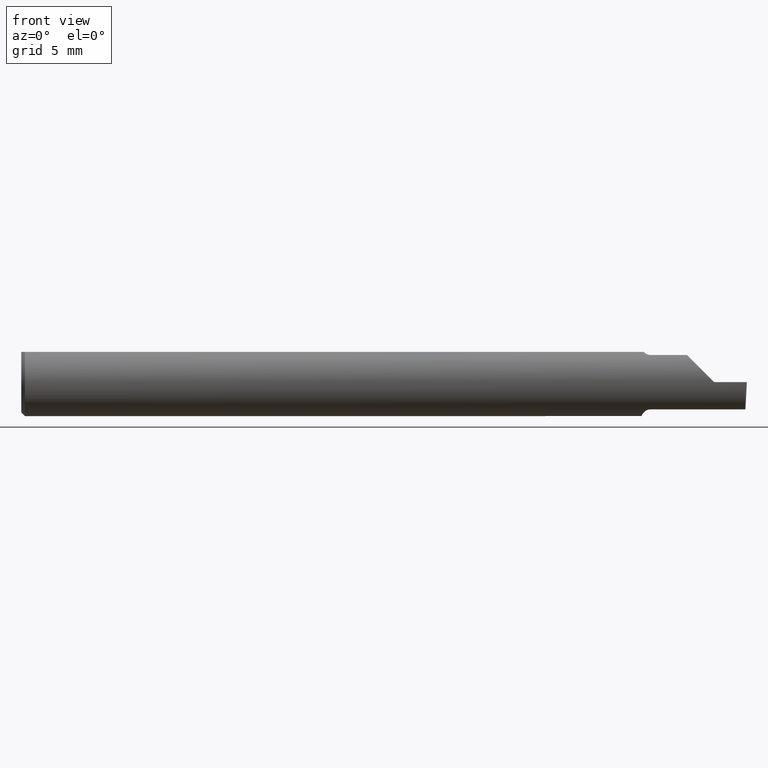
[diagram: clean part render]
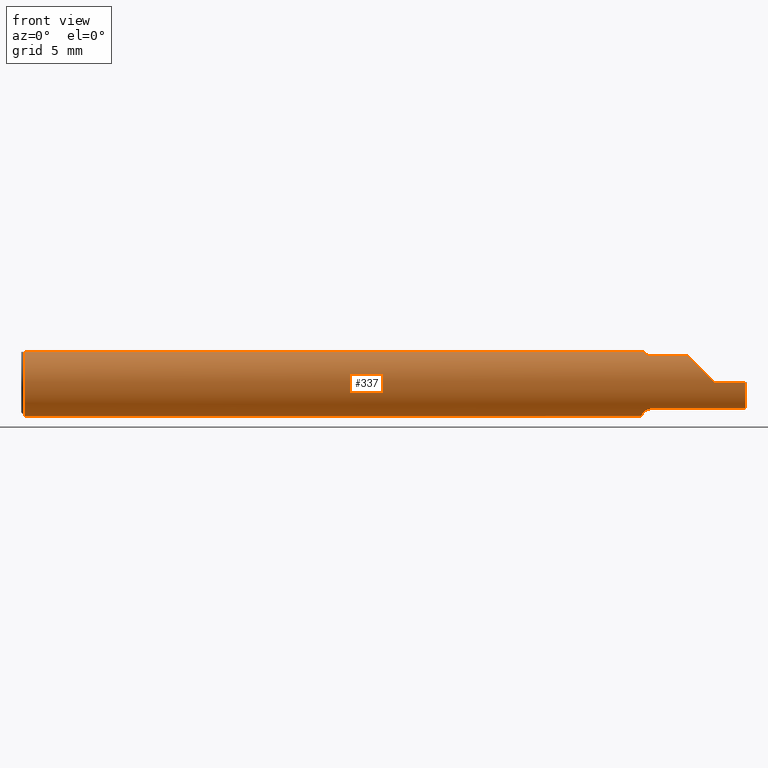
[diagram: same view with one face highlighted and labeled with its STEP entity id]
A machine part, front view. The second image highlights one B-rep face of the part: STEP entity #337.
In plain terms, the highlighted cylindrical surface (edge-blend (fillet) strip) has radius 2.3774 mm, axis along (-1, -0, -0).
Its self-contained STEP definition (entity closure, byte-faithful):
#3 = CARTESIAN_POINT ( 'NONE',  ( 1.709999999999999964, 0.04209513035969864037, 0.08359999999999988274 ) ) ;
#9 = AXIS2_PLACEMENT_3D ( 'NONE', #264, #501, #282 ) ;
#10 = CARTESIAN_POINT ( 'NONE',  ( 0.01000000000000016674, 0.04209513035969864037, 0.08359999999999988274 ) ) ;
#11 = DIRECTION ( 'NONE',  ( -1.000000000000000000, -0.000000000000000000, -0.000000000000000000 ) ) ;
#15 = CARTESIAN_POINT ( 'NONE',  ( 0.000000000000000000, -0.04209513035969864037, 0.08359999999999988274 ) ) ;
#16 = CARTESIAN_POINT ( 'NONE',  ( 0.01000000000000016674, -0.04209513035969864037, 0.08359999999999988274 ) ) ;
#19 = DIRECTION ( 'NONE',  ( 0.000000000000000000, 0.000000000000000000, 1.000000000000000000 ) ) ;
#26 = EDGE_CURVE ( 'NONE', #207, #250, #613, .T. ) ;
#31 = CARTESIAN_POINT ( 'NONE',  ( 1.716129652885479473, -0.04209513035970119388, 0.08359999999999991049 ) ) ;
#33 = VECTOR ( 'NONE', #679, 39.37007874015748143 ) ;
#34 = CARTESIAN_POINT ( 'NONE',  ( 0.01000000000000016674, 0.000000000000000000, -0.09360000000000001652 ) ) ;
#44 = AXIS2_PLACEMENT_3D ( 'NONE', #406, #628, #617 ) ;
#53 = CARTESIAN_POINT ( 'NONE',  ( 1.711762116932663558, -0.02818790137206256263, -0.08941930521177116065 ) ) ;
#57 = CARTESIAN_POINT ( 'NONE',  ( 1.854690286057537163, -0.08092595952420827965, 0.05530971394246238931 ) ) ;
#72 = ORIENTED_EDGE ( 'NONE', *, *, #690, .T. ) ;
#77 = VERTEX_POINT ( 'NONE', #564 ) ;
#88 = CARTESIAN_POINT ( 'NONE',  ( 1.726308147845286634, -0.05549979236676332722, 0.07538081185522389760 ) ) ;
#107 = CARTESIAN_POINT ( 'NONE',  ( 1.734999999999999876, -0.05810704225352095881, -0.07337936794867842838 ) ) ;
#109 = ORIENTED_EDGE ( 'NONE', *, *, #221, .F. ) ;
#116 = CIRCLE ( 'NONE', #9, 0.09360000000000001652 ) ;
#148 = VECTOR ( 'NONE', #674, 39.37007874015748143 ) ;
#149 = VERTEX_POINT ( 'NONE', #372 ) ;
#150 = CARTESIAN_POINT ( 'NONE',  ( 1.717870098798738088, -0.04602557371825105603, 0.08162090280442951817 ) ) ;
#164 = CARTESIAN_POINT ( 'NONE',  ( 1.712856118429613828, -0.03323074941465632010, -0.08766015375840498225 ) ) ;
#177 = B_SPLINE_CURVE_WITH_KNOTS ( 'NONE', 3,
 ( #107, #542, #576, #256, #582, #483, #268, #164, #53, #480, #435, #261 ),
 .UNSPECIFIED., .F., .F.,
 ( 4, 2, 2, 2, 2, 4 ),
 ( 1.968126669309073504E-07, 0.0002104342718631984689, 0.0004206717310594660676, 0.0008411466494520005062, 0.001261621567844535162, 0.001682096486237069600 ),
 .UNSPECIFIED. ) ;
#193 = EDGE_CURVE ( 'NONE', #250, #334, #177, .T. ) ;
#198 = CIRCLE ( 'NONE', #684, 0.09360000000000001652 ) ;
#201 = VECTOR ( 'NONE', #275, 39.37007874015748143 ) ;
#207 = VERTEX_POINT ( 'NONE', #313 ) ;
#211 = CARTESIAN_POINT ( 'NONE',  ( 1.836620632051321200, -0.05810704225352119473, 0.07337936794867828960 ) ) ;
#213 = EDGE_CURVE ( 'NONE', #698, #77, #586, .T. ) ;
#221 = EDGE_CURVE ( 'NONE', #334, #535, #116, .T. ) ;
#226 = CARTESIAN_POINT ( 'NONE',  ( 1.709999999999999964, -0.006757276995305152960, -0.09335576686851605743 ) ) ;
#229 = CYLINDRICAL_SURFACE ( 'NONE', #253, 0.09360000000000001652 ) ;
#233 = ORIENTED_EDGE ( 'NONE', *, *, #26, .F. ) ;
#237 = VERTEX_POINT ( 'NONE', #16 ) ;
#249 = EDGE_CURVE ( 'NONE', #535, #631, #450, .T. ) ;
#250 = VERTEX_POINT ( 'NONE', #504 ) ;
#253 = AXIS2_PLACEMENT_3D ( 'NONE', #650, #11, #19 ) ;
#256 = CARTESIAN_POINT ( 'NONE',  ( 1.725047675231717204, -0.05464443219068141483, -0.07601042893068211959 ) ) ;
#261 = CARTESIAN_POINT ( 'NONE',  ( 1.709999999999999964, -0.006757276995305152960, -0.09335576686851605743 ) ) ;
#264 = CARTESIAN_POINT ( 'NONE',  ( 1.709999999999999964, 0.000000000000000000, 0.000000000000000000 ) ) ;
#268 = CARTESIAN_POINT ( 'NONE',  ( 1.716206319820904991, -0.04283575577410217439, -0.08338874798717361980 ) ) ;
#275 = DIRECTION ( 'NONE',  ( -1.000000000000000000, -0.000000000000000000, -0.000000000000000000 ) ) ;
#282 = DIRECTION ( 'NONE',  ( 0.000000000000000000, 1.000000000000000000, 0.000000000000000000 ) ) ;
#284 = VERTEX_POINT ( 'NONE', #340 ) ;
#290 = ORIENTED_EDGE ( 'NONE', *, *, #366, .T. ) ;
#295 = CARTESIAN_POINT ( 'NONE',  ( 2.999519565323742037E-32, -0.09359999999999998876, 2.449293598294716768E-16 ) ) ;
#301 = CARTESIAN_POINT ( 'NONE',  ( 1.732603832840145408, -0.05810704225352093799, 0.07337936794867844226 ) ) ;
#313 = CARTESIAN_POINT ( 'NONE',  ( 1.995113740419715231, -0.05810704225352097962, -0.07337936794867837287 ) ) ;
#322 = B_SPLINE_CURVE_WITH_KNOTS ( 'NONE', 3,
 ( #31, #150, #362, #468, #88, #346, #301, #526 ),
 .UNSPECIFIED., .F., .F.,
 ( 4, 2, 2, 4 ),
 ( 4.741820243502701581E-07, 0.0003579866703973726767, 0.0005367429145838903837, 0.0007154991587704082534 ),
 .UNSPECIFIED. ) ;
#330 = CARTESIAN_POINT ( 'NONE',  ( 1.995346537079453642, -0.08092595952420821026, -0.05530971394246255585 ) ) ;
#332 = VECTOR ( 'NONE', #393, 39.37007874015748143 ) ;
#334 = VERTEX_POINT ( 'NONE', #226 ) ;
#337 = ADVANCED_FACE ( 'NONE', ( #655 ), #229, .T. ) ;
#340 = CARTESIAN_POINT ( 'NONE',  ( 1.997057062866469668, -0.09360000000000001652, 0.000000000000000000 ) ) ;
#346 = CARTESIAN_POINT ( 'NONE',  ( 1.730292432600754049, -0.05747478081012616369, 0.07388601572377859195 ) ) ;
#352 = DIRECTION ( 'NONE',  ( -1.000000000000000000, -0.000000000000000000, -0.000000000000000000 ) ) ;
#362 = CARTESIAN_POINT ( 'NONE',  ( 1.720033121973953527, -0.04963861219531608832, 0.07943694244057659948 ) ) ;
#366 = EDGE_CURVE ( 'NONE', #420, #631, #558, .T. ) ;
#372 = CARTESIAN_POINT ( 'NONE',  ( 1.716129652885479473, -0.04209513035970119388, 0.08359999999999991049 ) ) ;
#378 = ORIENTED_EDGE ( 'NONE', *, *, #399, .F. ) ;
#384 = CARTESIAN_POINT ( 'NONE',  ( 0.000000000000000000, 0.04209513035969864037, 0.08359999999999988274 ) ) ;
#387 = CARTESIAN_POINT ( 'NONE',  ( 1.734999999999999876, -0.05810704225352093799, 0.07337936794867844226 ) ) ;
#389 = DIRECTION ( 'NONE',  ( 1.000000000000000000, 0.000000000000000000, 0.000000000000000000 ) ) ;
#393 = DIRECTION ( 'NONE',  ( 1.000000000000000000, 0.000000000000000000, 0.000000000000000000 ) ) ;
#399 = EDGE_CURVE ( 'NONE', #149, #686, #322, .T. ) ;
#400 = ORIENTED_EDGE ( 'NONE', *, *, #213, .T. ) ;
#401 = EDGE_CURVE ( 'NONE', #284, #698, #524, .T. ) ;
#405 = ORIENTED_EDGE ( 'NONE', *, *, #249, .F. ) ;
#406 = CARTESIAN_POINT ( 'NONE',  ( 0.01000000000000016674, 0.000000000000000000, 0.000000000000000000 ) ) ;
#420 = VERTEX_POINT ( 'NONE', #34 ) ;
#421 = EDGE_CURVE ( 'NONE', #686, #77, #612, .T. ) ;
#422 = CARTESIAN_POINT ( 'NONE',  ( 1.910000000000000142, -0.09360000000000005815, 1.102182119232621301E-17 ) ) ;
#435 = CARTESIAN_POINT ( 'NONE',  ( 1.709999999999999742, -0.01220003991882275506, -0.09296180880970877913 ) ) ;
#445 = DIRECTION ( 'NONE',  ( 0.000000000000000000, 0.000000000000000000, -1.000000000000000000 ) ) ;
#450 = LINE ( 'NONE', #384, #201 ) ;
#466 = CARTESIAN_POINT ( 'NONE',  ( 1.852233979999999836, -0.05810704225352100738, 0.07337936794867837287 ) ) ;
#468 = CARTESIAN_POINT ( 'NONE',  ( 1.724565501274438528, -0.05415466354550831085, 0.07636456853488582386 ) ) ;
#480 = CARTESIAN_POINT ( 'NONE',  ( 1.710323329158491390, -0.01767221859896409009, -0.09207639555340685344 ) ) ;
#483 = CARTESIAN_POINT ( 'NONE',  ( 1.718379054196076838, -0.04728090127810213178, -0.08090622725813384486 ) ) ;
#489 = EDGE_LOOP ( 'NONE', ( #233, #549, #622, #400, #635, #378, #509, #72, #290, #405, #109, #502 ) ) ;
#497 = LINE ( 'NONE', #15, #332 ) ;
#501 = DIRECTION ( 'NONE',  ( 1.000000000000000000, 1.645101957906638708E-16, 0.000000000000000000 ) ) ;
#502 = ORIENTED_EDGE ( 'NONE', *, *, #193, .F. ) ;
#504 = CARTESIAN_POINT ( 'NONE',  ( 1.734999999999999876, -0.05810704225352095881, -0.07337936794867842838 ) ) ;
#509 = ORIENTED_EDGE ( 'NONE', *, *, #632, .F. ) ;
#524 = LINE ( 'NONE', #295, #578 ) ;
#526 = CARTESIAN_POINT ( 'NONE',  ( 1.734999999999999876, -0.05810704225352093799, 0.07337936794867844226 ) ) ;
#535 = VERTEX_POINT ( 'NONE', #3 ) ;
#542 = CARTESIAN_POINT ( 'NONE',  ( 1.732196475348975584, -0.05810704225352093105, -0.07337936794867844226 ) ) ;
#547 = CARTESIAN_POINT ( 'NONE',  ( 1.996040470437265846, -0.09360000000000004428, -0.02910696448121683627 ) ) ;
#549 = ORIENTED_EDGE ( 'NONE', *, *, #593, .T. ) ;
#550 = CARTESIAN_POINT ( 'NONE',  ( 0.01000000000000016674, 0.000000000000000000, 0.000000000000000000 ) ) ;
#555 = CARTESIAN_POINT ( 'NONE',  ( 1.995113740419715231, -0.05810704225352097962, -0.07337936794867837287 ) ) ;
#558 = CIRCLE ( 'NONE', #44, 0.09360000000000001652 ) ;
#564 = CARTESIAN_POINT ( 'NONE',  ( 1.836620632051321200, -0.05810704225352119473, 0.07337936794867828960 ) ) ;
#576 = CARTESIAN_POINT ( 'NONE',  ( 1.729541435880794120, -0.05724930034136781198, -0.07406832579512054315 ) ) ;
#578 = VECTOR ( 'NONE', #352, 39.37007874015748143 ) ;
#582 = CARTESIAN_POINT ( 'NONE',  ( 1.723195691242756178, -0.05295078397730234449, -0.07721567059148480572 ) ) ;
#586 =( BOUNDED_CURVE ( )  B_SPLINE_CURVE ( 3, ( #422, #633, #57, #211 ),
 .UNSPECIFIED., .F., .T. ) 
 B_SPLINE_CURVE_WITH_KNOTS ( ( 4, 4 ),
 ( 4.712388980384689674, 5.613420356061718408 ),
 .UNSPECIFIED. ) 
 CURVE ( )  GEOMETRIC_REPRESENTATION_ITEM ( )  RATIONAL_B_SPLINE_CURVE ( ( 1.000000000000000000, 0.9334817841311876530, 0.9334817841311876530, 1.000000000000000000 ) ) 
 REPRESENTATION_ITEM ( '' )  );
#593 = EDGE_CURVE ( 'NONE', #207, #284, #689, .T. ) ;
#612 = LINE ( 'NONE', #466, #33 ) ;
#613 = LINE ( 'NONE', #619, #148 ) ;
#617 = DIRECTION ( 'NONE',  ( 0.000000000000000000, 0.000000000000000000, -1.000000000000000000 ) ) ;
#619 = CARTESIAN_POINT ( 'NONE',  ( 1.852233979999999836, -0.05810704225352100738, -0.07337936794867837287 ) ) ;
#622 = ORIENTED_EDGE ( 'NONE', *, *, #401, .T. ) ;
#628 = DIRECTION ( 'NONE',  ( 1.000000000000000000, 0.000000000000000000, 0.000000000000000000 ) ) ;
#631 = VERTEX_POINT ( 'NONE', #10 ) ;
#632 = EDGE_CURVE ( 'NONE', #237, #149, #497, .T. ) ;
#633 = CARTESIAN_POINT ( 'NONE',  ( 1.880893035518783396, -0.09360000000000001652, 0.02910696448121676688 ) ) ;
#635 = ORIENTED_EDGE ( 'NONE', *, *, #421, .F. ) ;
#650 = CARTESIAN_POINT ( 'NONE',  ( 0.000000000000000000, 0.000000000000000000, 0.000000000000000000 ) ) ;
#655 = FACE_OUTER_BOUND ( 'NONE', #489, .T. ) ;
#658 = CARTESIAN_POINT ( 'NONE',  ( 1.997057062866469668, -0.09360000000000001652, 0.000000000000000000 ) ) ;
#674 = DIRECTION ( 'NONE',  ( -1.000000000000000000, -1.645101957906638708E-16, -0.000000000000000000 ) ) ;
#675 = CARTESIAN_POINT ( 'NONE',  ( 1.910000000000000142, -0.09360000000000005815, 1.102182119232621301E-17 ) ) ;
#679 = DIRECTION ( 'NONE',  ( 1.000000000000000000, 1.645101957906638708E-16, 0.000000000000000000 ) ) ;
#684 = AXIS2_PLACEMENT_3D ( 'NONE', #550, #389, #445 ) ;
#686 = VERTEX_POINT ( 'NONE', #387 ) ;
#689 =( BOUNDED_CURVE ( )  B_SPLINE_CURVE ( 3, ( #555, #330, #547, #658 ),
 .UNSPECIFIED., .F., .T. ) 
 B_SPLINE_CURVE_WITH_KNOTS ( ( 4, 4 ),
 ( 0.2063001339125326294, 1.107331509589563945 ),
 .UNSPECIFIED. ) 
 CURVE ( )  GEOMETRIC_REPRESENTATION_ITEM ( )  RATIONAL_B_SPLINE_CURVE ( ( 1.000000000000000000, 0.9334817841311872089, 0.9334817841311872089, 1.000000000000000000 ) ) 
 REPRESENTATION_ITEM ( '' )  );
#690 = EDGE_CURVE ( 'NONE', #237, #420, #198, .T. ) ;
#698 = VERTEX_POINT ( 'NONE', #675 ) ;